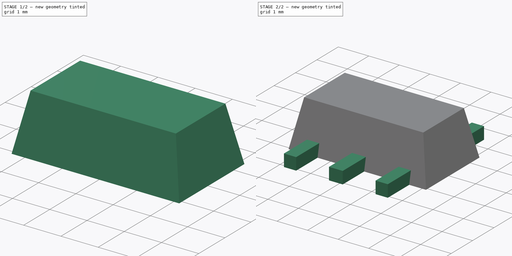
[diagram: build sequence overview — one tinted view per stage of 2, left to right]
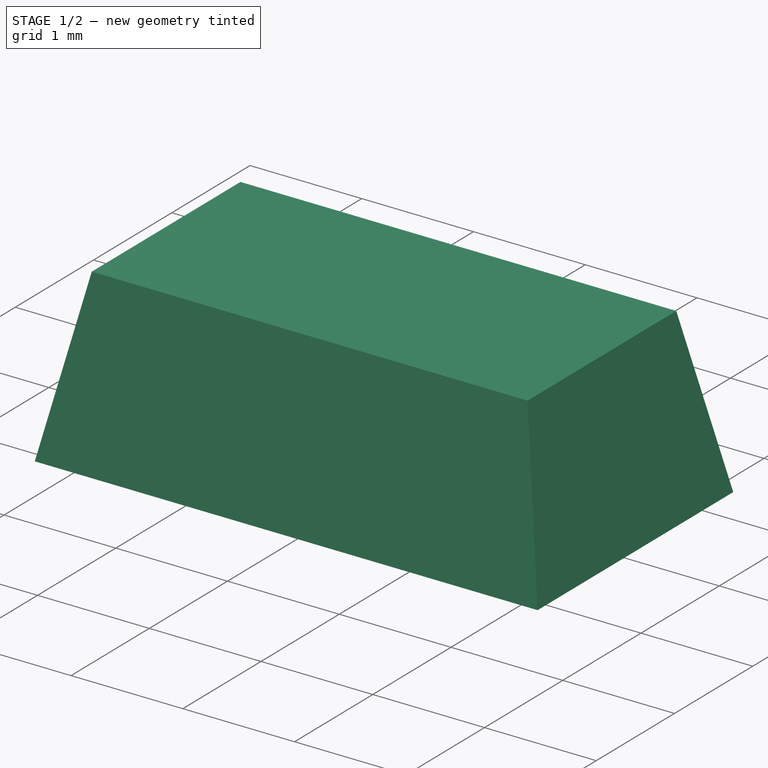
[diagram: stage 1 of 2 — iso view after this stage's code; geometry added in this stage tinted green]
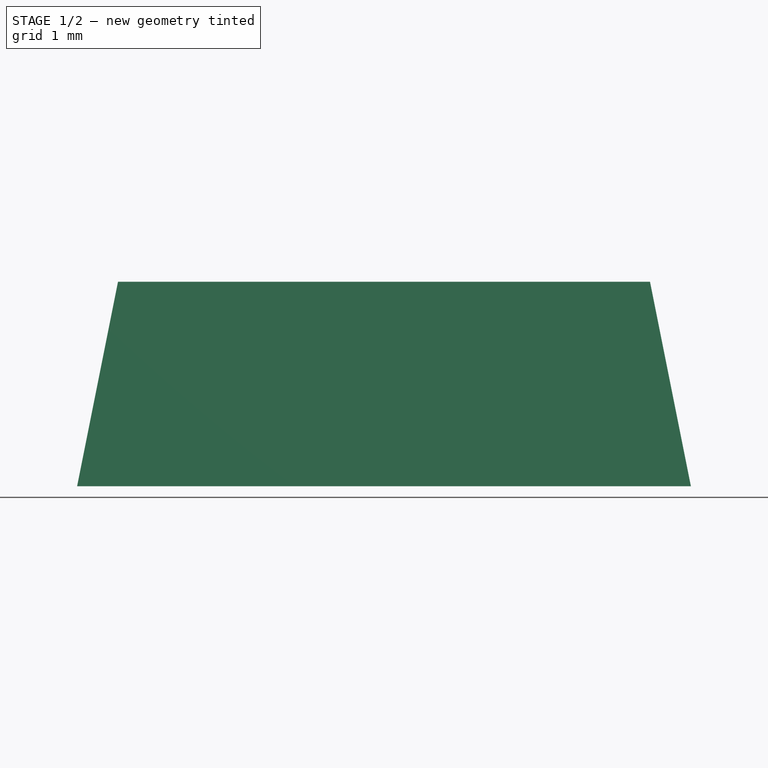
[diagram: stage 1 of 2 — front view after this stage's code; geometry added in this stage tinted green]
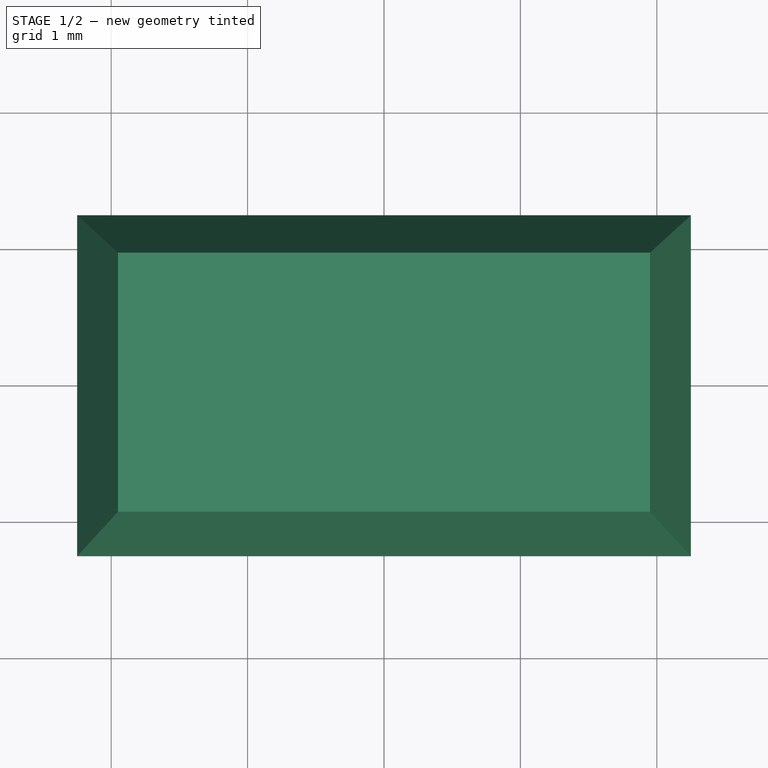
[diagram: stage 1 of 2 — top view after this stage's code; geometry added in this stage tinted green]
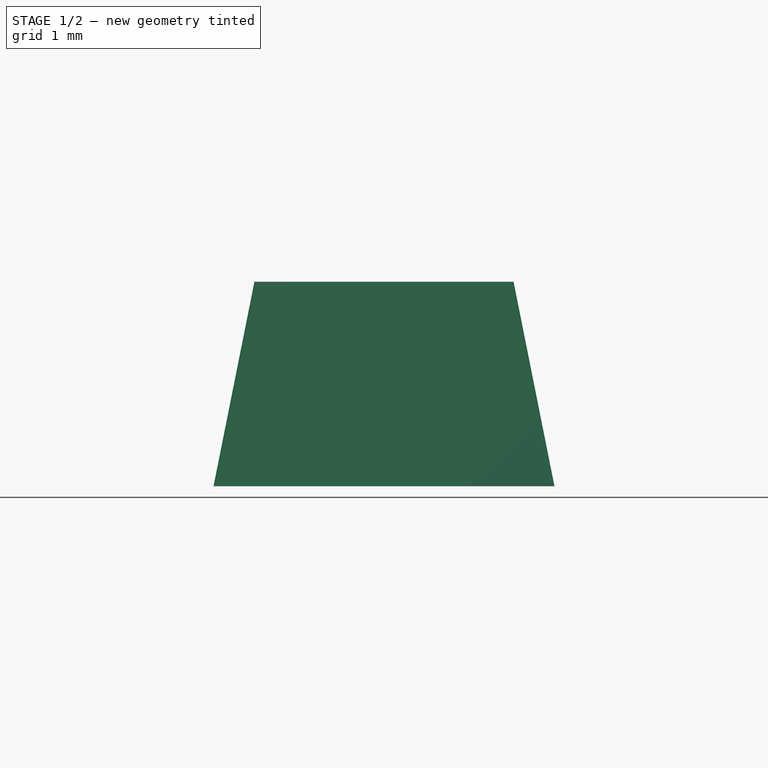
[diagram: stage 1 of 2 — right view after this stage's code; geometry added in this stage tinted green]
FCSTD DOCUMENT  (FreeCAD 0.19R)
Label: S1133_E
License: All rights reserved
LicenseURL: http://en.wikipedia.org/wiki/All_rights_reserved
objects: Sketcher::SketchObject×3, PartDesign::Plane×2, PartDesign::AdditiveLoft×1, PartDesign::Pad×1, PartDesign::Body×1
note: 10 computed .brp shape members not serialized (recipe doc carries the construction recipe); baked Part::Feature solids carry a one-line shape summary decoded from their .brp

FEATURE [Sketcher::SketchObject] Sketch
  FullyConstrained = true
  MapMode = 5
  Support = -> [XY_Plane]
  sketch-geometry (4):
    g0: LineSegment StartX=-2.25 StartY=1.25 StartZ=0 EndX=2.25 EndY=1.25 EndZ=0
    g1: LineSegment StartX=2.25 StartY=1.25 StartZ=0 EndX=2.25 EndY=-1.25 EndZ=0
    g2: LineSegment StartX=2.25 StartY=-1.25 StartZ=0 EndX=-2.25 EndY=-1.25 EndZ=0
    g3: LineSegment StartX=-2.25 StartY=-1.25 StartZ=0 EndX=-2.25 EndY=1.25 EndZ=0
  constraints (11):
    c: Coincident(g0,g1)
    c: Coincident(g1,g2)
    c: Coincident(g2,g3)
    c: Coincident(g3,g0)
    c: Horizontal(g0)
    c: Horizontal(g2)
    c: Vertical(g1)
    c: Vertical(g3)
    c: Symmetric(g0,g1,g-1)
    c: DistanceY(g3,g3) = 2.5
    c: DistanceX(g0,g0) = 4.5
FEATURE [PartDesign::Plane] DatumPlane
  AttachmentOffset = pos=(0,0,1.5) rot=(0,0,1;0rad)
  Length = 60
  MapMode = 5
  Placement = pos=(0,0,1.5) rot=(0,0,1;0rad)
  ResizeMode = 0
  Support = -> [XY_Plane]
  Width = 60
FEATURE [Sketcher::SketchObject] Sketch001
  FullyConstrained = true
  MapMode = 5
  Placement = pos=(0,0,1.5) rot=(0,0,1;0rad)
  Support = -> [DatumPlane]
  sketch-geometry (4):
    g0: LineSegment StartX=-1.95 StartY=0.95 StartZ=0 EndX=1.95 EndY=0.95 EndZ=0
    g1: LineSegment StartX=1.95 StartY=0.95 StartZ=0 EndX=1.95 EndY=-0.95 EndZ=0
    g2: LineSegment StartX=1.95 StartY=-0.95 StartZ=0 EndX=-1.95 EndY=-0.95 EndZ=0
    g3: LineSegment StartX=-1.95 StartY=-0.95 StartZ=0 EndX=-1.95 EndY=0.95 EndZ=0
  constraints (11):
    c: Coincident(g0,g1)
    c: Coincident(g1,g2)
    c: Coincident(g2,g3)
    c: Coincident(g3,g0)
    c: Horizontal(g0)
    c: Horizontal(g2)
    c: Vertical(g1)
    c: Vertical(g3)
    c: Symmetric(g0,g1,g-1)
    c: DistanceY(g3,g3) = 1.9
    c: DistanceX(g0,g0) = 3.9
FEATURE [PartDesign::AdditiveLoft] AdditiveLoft
  Closed = false
  Profile = -> Sketch
  Ruled = false
  Sections = -> [Sketch001]
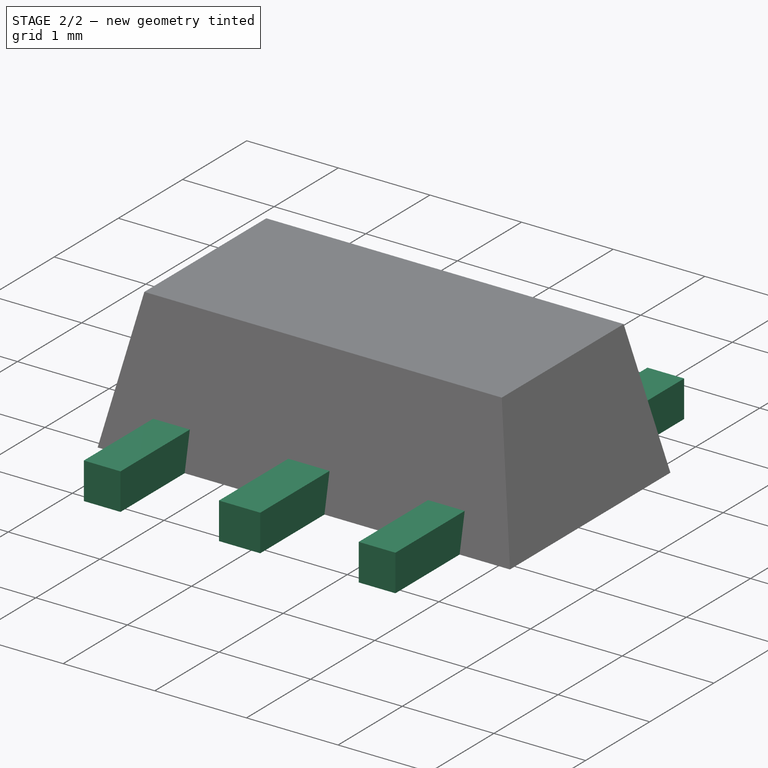
[diagram: stage 2 of 2 — iso view after this stage's code; geometry added in this stage tinted green]
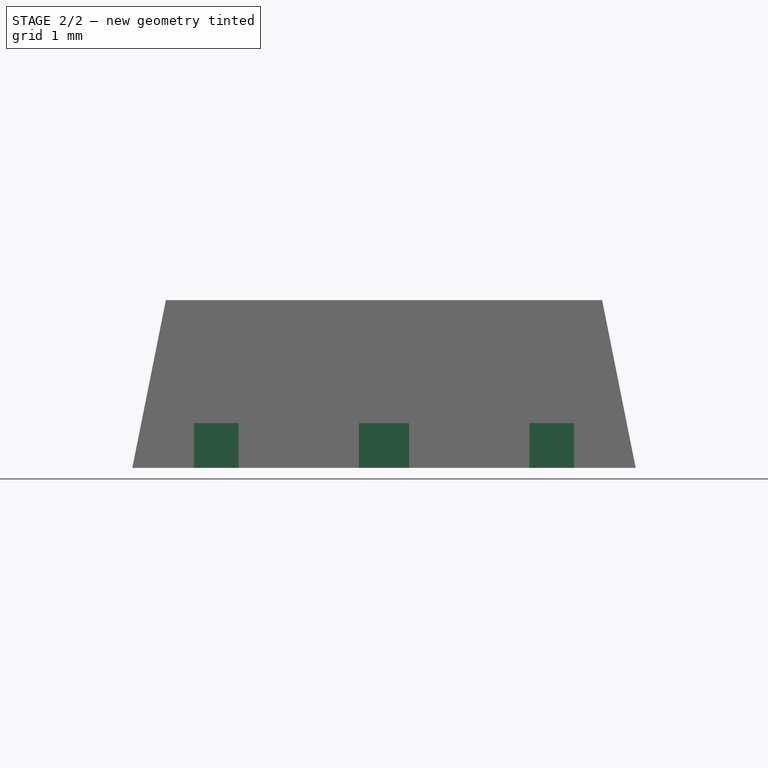
[diagram: stage 2 of 2 — front view after this stage's code; geometry added in this stage tinted green]
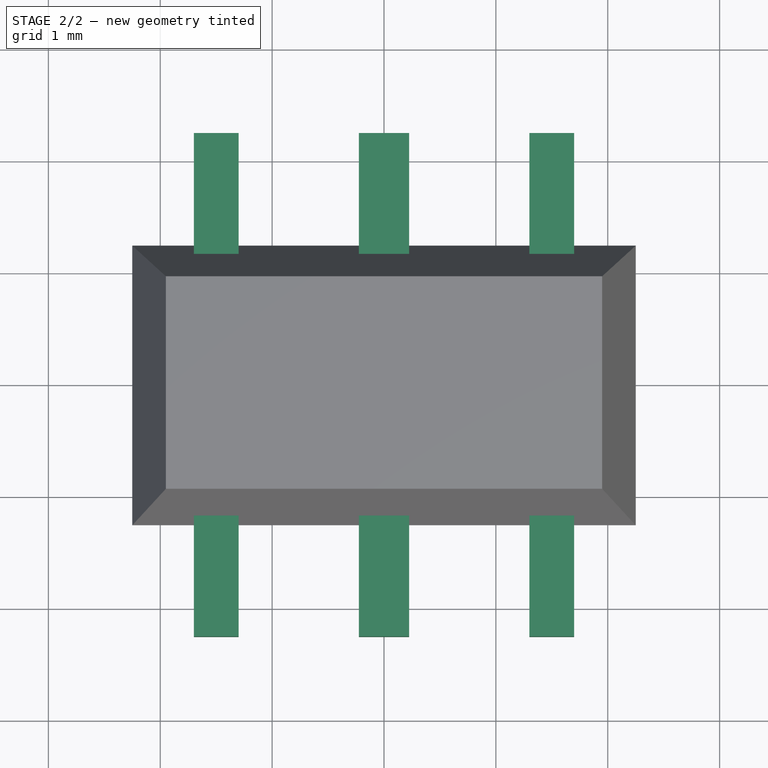
[diagram: stage 2 of 2 — top view after this stage's code; geometry added in this stage tinted green]
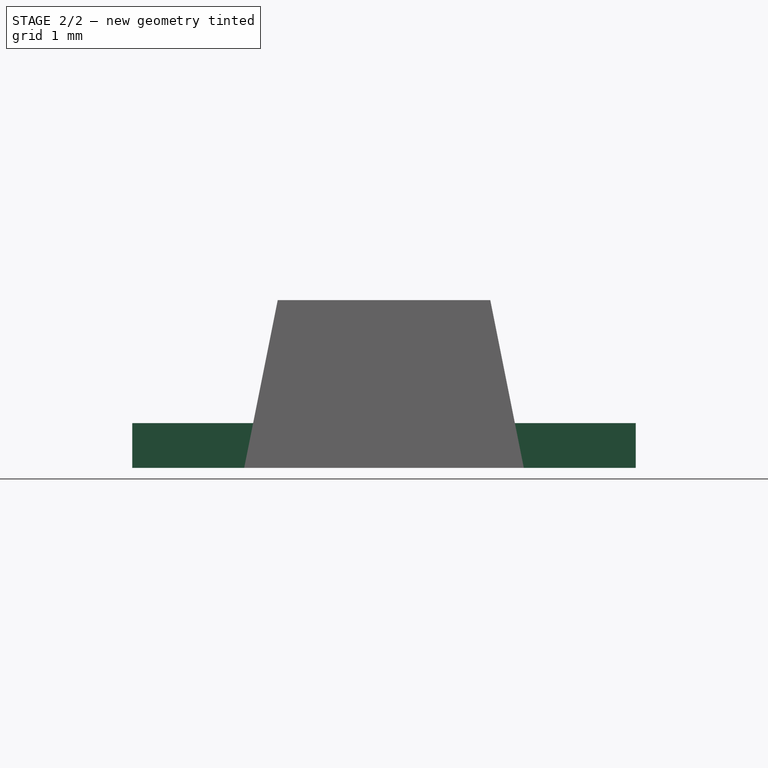
[diagram: stage 2 of 2 — right view after this stage's code; geometry added in this stage tinted green]
FEATURE [PartDesign::Plane] DatumPlane001
  AttachmentOffset = pos=(0,0,2.25) rot=(0,0,1;0rad)
  Length = 60
  MapMode = 5
  Placement = pos=(0,-2.25,5e-16) rot=(1,0,0;1.5708rad)
  ResizeMode = 0
  Support = -> [XZ_Plane]
  Width = 60
FEATURE [Sketcher::SketchObject] Sketch002
  FullyConstrained = true
  MapMode = 5
  Placement = pos=(0,-2.25,5e-16) rot=(1,0,0;1.5708rad)
  Support = -> [DatumPlane001]
  sketch-geometry (14):
    g0: LineSegment StartX=-1.7 StartY=0 StartZ=0 EndX=-1.3 EndY=0 EndZ=0
    g1: LineSegment StartX=-1.3 StartY=0 StartZ=0 EndX=-1.3 EndY=0.4 EndZ=0
    g2: LineSegment StartX=-1.3 StartY=0.4 StartZ=0 EndX=-1.7 EndY=0.4 EndZ=0
    g3: LineSegment StartX=-1.7 StartY=0.4 StartZ=0 EndX=-1.7 EndY=0 EndZ=0
    g4: LineSegment StartX=-1.5 StartY=0 StartZ=0 EndX=-1.5 EndY=0.4 EndZ=0
    g5: LineSegment StartX=1.3 StartY=0 StartZ=0 EndX=1.7 EndY=0 EndZ=0
    g6: LineSegment StartX=1.7 StartY=0 StartZ=0 EndX=1.7 EndY=0.4 EndZ=0
    g7: LineSegment StartX=1.7 StartY=0.4 StartZ=0 EndX=1.3 EndY=0.4 EndZ=0
    g8: LineSegment StartX=1.3 StartY=0.4 StartZ=0 EndX=1.3 EndY=0 EndZ=0
    g9: LineSegment StartX=1.5 StartY=0 StartZ=0 EndX=1.5 EndY=0.4 EndZ=0
    g10: LineSegment StartX=-0.225 StartY=0 StartZ=0 EndX=0.225 EndY=0 EndZ=0
    g11: LineSegment StartX=0.225 StartY=0 StartZ=0 EndX=0.225 EndY=0.4 EndZ=0
    g12: LineSegment StartX=0.225 StartY=0.4 StartZ=0 EndX=-0.225 EndY=0.4 EndZ=0
    g13: LineSegment StartX=-0.225 StartY=0.4 StartZ=0 EndX=-0.225 EndY=0 EndZ=0
  constraints (41):
    c: Coincident(g0,g1)
    c: Coincident(g1,g2)
    c: Coincident(g2,g3)
    c: Coincident(g3,g0)
    c: Horizontal(g0)
    c: Horizontal(g2)
    c: Vertical(g1)
    c: Vertical(g3)
    c: PointOnObject(g0,g-1)
    c: DistanceY(g3,g3) = 0.4
    c: DistanceX(g2,g2) = 0.4
    c: PointOnObject(g4,g2)
    c: Vertical(g4)
    c: Symmetric(g0,g0,g4)
    c: DistanceX(g4,g-1) = 1.5
    c: Coincident(g5,g6)
    c: Coincident(g6,g7)
    c: Coincident(g7,g8)
    c: Coincident(g8,g5)
    c: Horizontal(g5)
    c: Horizontal(g7)
    c: Vertical(g6)
    c: Vertical(g8)
    c: Equal(g3,g8) = 0.4
    c: Equal(g2,g7) = 0.4
    c: PointOnObject(g9,g7)
    c: Vertical(g9)
    c: Symmetric(g5,g5,g9)
    c: PointOnObject(g9,g-1)
    c: DistanceX(g-1,g9) = 1.5
    c: Coincident(g10,g11)
    c: Coincident(g11,g12)
    c: Coincident(g12,g13)
    c: Coincident(g13,g10)
    c: Horizontal(g10)
    c: Horizontal(g12)
    c: Vertical(g11)
    c: Vertical(g13)
    c: DistanceY(g13,g13) = 0.4
    c: DistanceX(g12,g12) = 0.45
    c: Symmetric(g10,g10,g-1)
FEATURE [PartDesign::Pad] Pad
  BaseFeature = -> AdditiveLoft
  Direction = (1,1,1)
  Length = 4.5
  Length2 = 100
  Profile = -> Sketch002
  Reversed = true
  Type = 0
FEATURE [PartDesign::Body] Body
  Group = -> [Sketch,DatumPlane,Sketch001,AdditiveLoft,DatumPlane001,Sketch002,Pad]
  Origin = -> Origin
  Tip = -> Pad
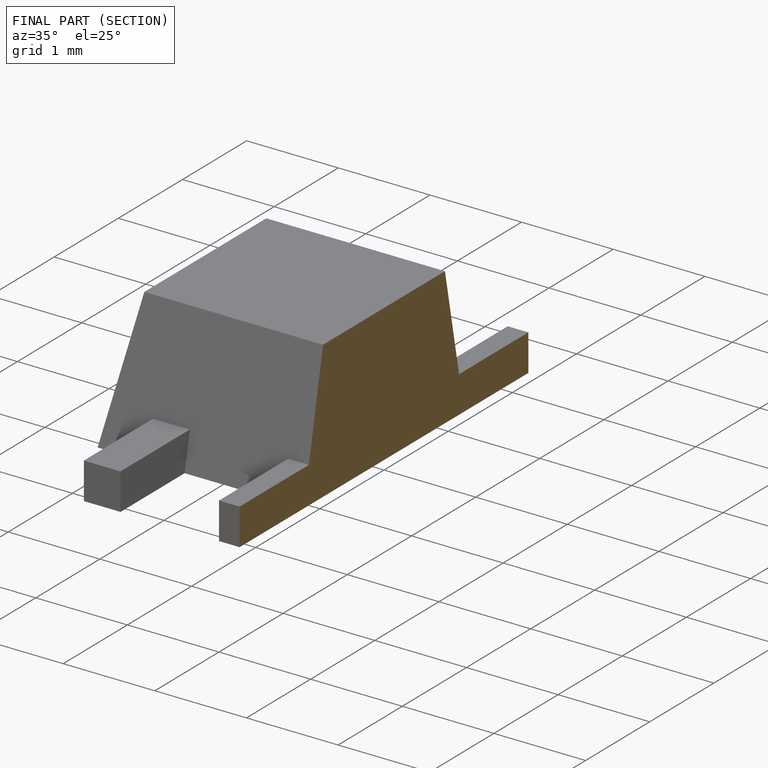
[diagram: finished part — half-section view (interior)]
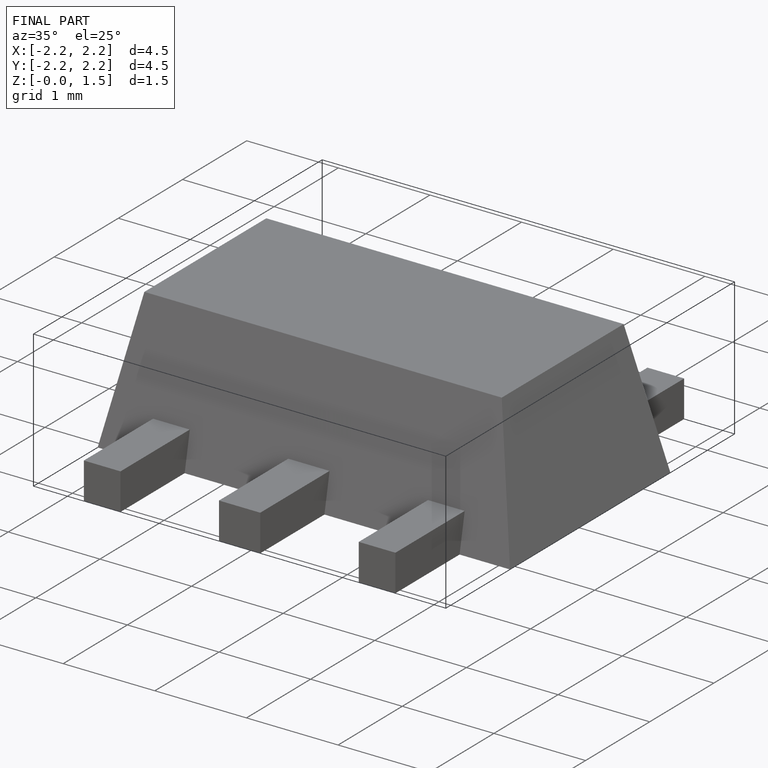
[diagram: finished part — iso view with bounding-box wireframe]
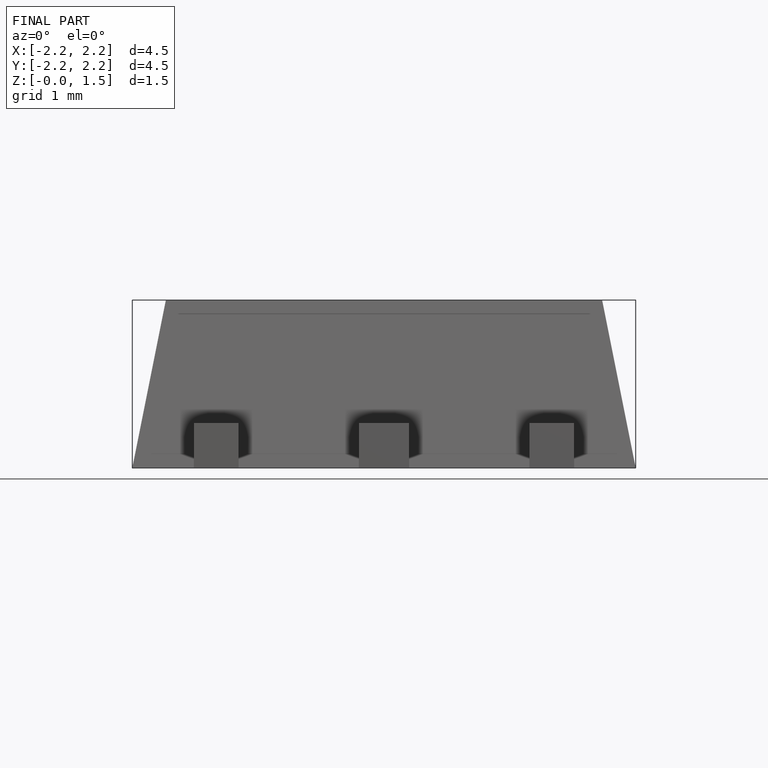
[diagram: finished part — front view with bounding-box wireframe]
